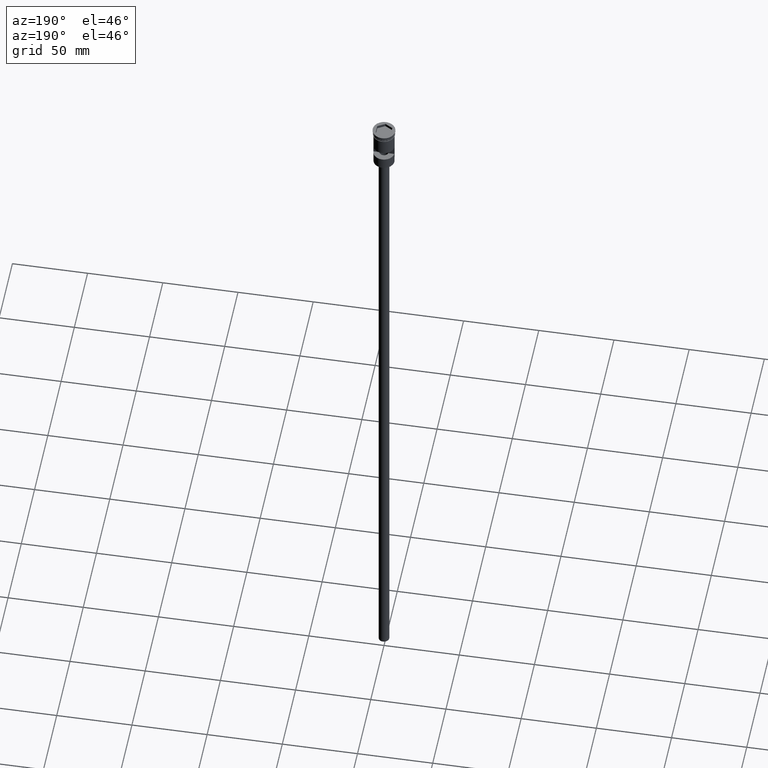
[diagram: clean part render]
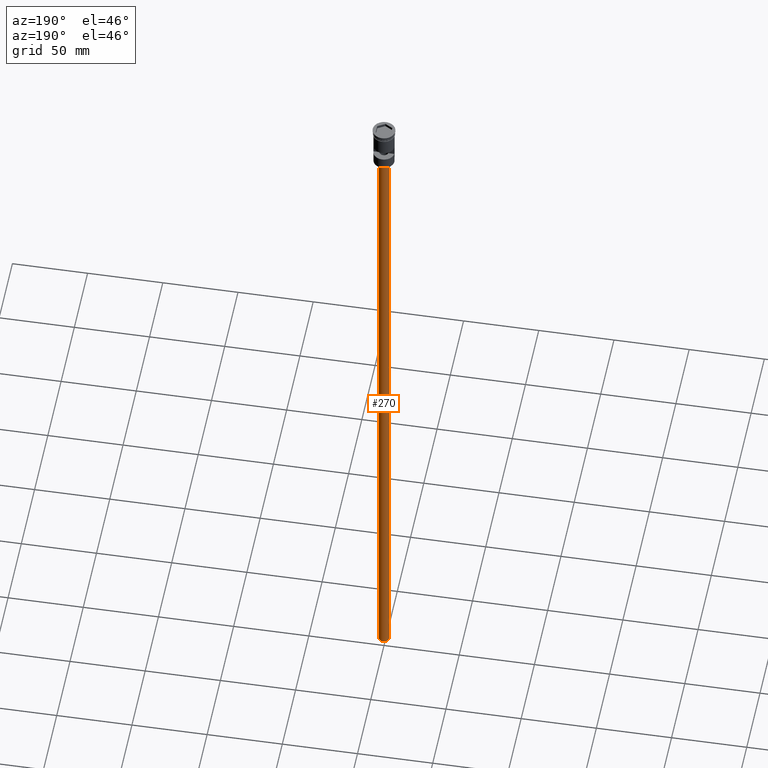
[diagram: same view with one face highlighted and labeled with its STEP entity id]
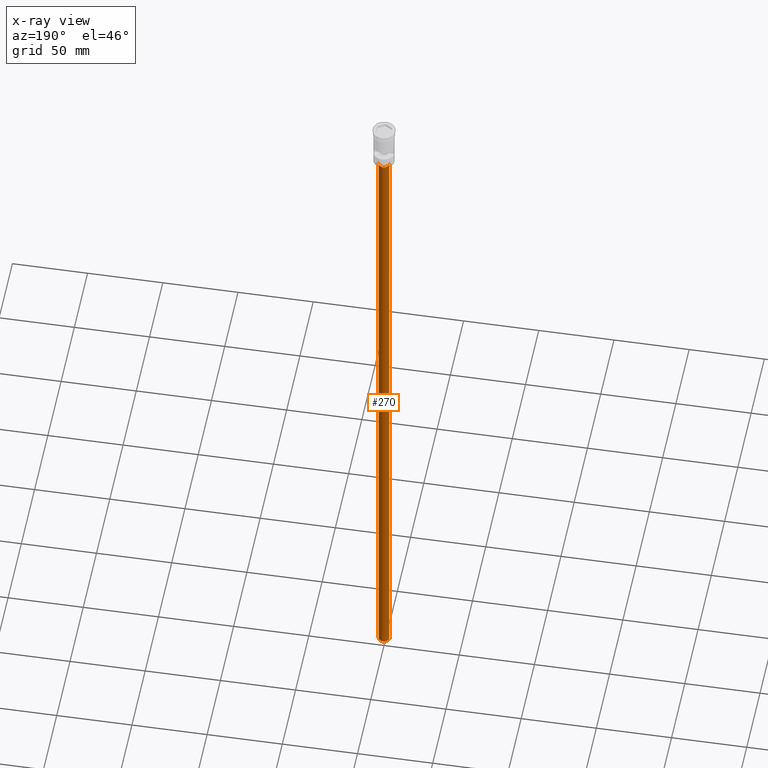
[diagram: x-ray of the same camera — body ghosted, the highlighted face saturated]
A machine part, auxiliary view. The second image highlights one B-rep face of the part: STEP entity #270.
The next image is the same camera in x-ray: the body ghosted, the highlighted face saturated — about 0% of this face is hidden behind the body in this view.
In plain terms, the highlighted cylindrical surface (edge-blend (fillet) strip) has radius 3.5 mm, axis along (-0, -0, 1).
Its self-contained STEP definition (entity closure, byte-faithful):
#6 = EDGE_LOOP ( 'NONE', ( #1063, #1061, #845, #296 ) ) ;
#7 = LINE ( 'NONE', #1358, #1218 ) ;
#21 = CARTESIAN_POINT ( 'NONE',  ( -3.500000000000000444, 4.286263797015737088E-16, -31.50000000000000000 ) ) ;
#57 = VERTEX_POINT ( 'NONE', #755 ) ;
#59 = EDGE_CURVE ( 'NONE', #798, #1407, #7, .T. ) ;
#80 = CARTESIAN_POINT ( 'NONE',  ( 0.000000000000000000, 0.000000000000000000, -478.5000000000000568 ) ) ;
#188 = DIRECTION ( 'NONE',  ( -1.000000000000000000, 0.000000000000000000, 0.000000000000000000 ) ) ;
#195 = EDGE_CURVE ( 'NONE', #57, #798, #227, .T. ) ;
#227 = CIRCLE ( 'NONE', #247, 3.500000000000000444 ) ;
#247 = AXIS2_PLACEMENT_3D ( 'NONE', #80, #1291, #188 ) ;
#256 = VECTOR ( 'NONE', #268, 1000.000000000000000 ) ;
#268 = DIRECTION ( 'NONE',  ( -0.000000000000000000, -0.000000000000000000, 1.000000000000000000 ) ) ;
#270 = ADVANCED_FACE ( 'NONE', ( #697 ), #1220, .T. ) ;
#296 = ORIENTED_EDGE ( 'NONE', *, *, #59, .F. ) ;
#316 = CARTESIAN_POINT ( 'NONE',  ( 3.500000000000000444, 0.000000000000000000, -31.50000000000000000 ) ) ;
#415 = VERTEX_POINT ( 'NONE', #21 ) ;
#482 = DIRECTION ( 'NONE',  ( -0.000000000000000000, -0.000000000000000000, 1.000000000000000000 ) ) ;
#483 = CIRCLE ( 'NONE', #886, 3.500000000000000444 ) ;
#576 = DIRECTION ( 'NONE',  ( 0.000000000000000000, 0.000000000000000000, -1.000000000000000000 ) ) ;
#602 = DIRECTION ( 'NONE',  ( 1.000000000000000000, 0.000000000000000000, 0.000000000000000000 ) ) ;
#694 = DIRECTION ( 'NONE',  ( -1.000000000000000000, 0.000000000000000000, 0.000000000000000000 ) ) ;
#697 = FACE_OUTER_BOUND ( 'NONE', #6, .T. ) ;
#755 = CARTESIAN_POINT ( 'NONE',  ( -3.500000000000000444, 4.286263797015737088E-16, -478.5000000000000568 ) ) ;
#798 = VERTEX_POINT ( 'NONE', #947 ) ;
#845 = ORIENTED_EDGE ( 'NONE', *, *, #986, .T. ) ;
#886 = AXIS2_PLACEMENT_3D ( 'NONE', #1296, #576, #694 ) ;
#947 = CARTESIAN_POINT ( 'NONE',  ( 3.500000000000000444, 0.000000000000000000, -478.5000000000000568 ) ) ;
#986 = EDGE_CURVE ( 'NONE', #415, #1407, #483, .T. ) ;
#1001 = DIRECTION ( 'NONE',  ( -0.000000000000000000, -0.000000000000000000, 1.000000000000000000 ) ) ;
#1061 = ORIENTED_EDGE ( 'NONE', *, *, #1222, .T. ) ;
#1063 = ORIENTED_EDGE ( 'NONE', *, *, #195, .F. ) ;
#1141 = AXIS2_PLACEMENT_3D ( 'NONE', #1337, #482, #602 ) ;
#1218 = VECTOR ( 'NONE', #1001, 1000.000000000000000 ) ;
#1220 = CYLINDRICAL_SURFACE ( 'NONE', #1141, 3.500000000000000444 ) ;
#1222 = EDGE_CURVE ( 'NONE', #57, #415, #1589, .T. ) ;
#1291 = DIRECTION ( 'NONE',  ( 0.000000000000000000, 0.000000000000000000, -1.000000000000000000 ) ) ;
#1296 = CARTESIAN_POINT ( 'NONE',  ( 0.000000000000000000, 0.000000000000000000, -31.50000000000000000 ) ) ;
#1337 = CARTESIAN_POINT ( 'NONE',  ( 0.000000000000000000, 0.000000000000000000, -478.5000000000000568 ) ) ;
#1339 = CARTESIAN_POINT ( 'NONE',  ( -3.500000000000000444, 4.286263797015737088E-16, -478.5000000000000568 ) ) ;
#1358 = CARTESIAN_POINT ( 'NONE',  ( 3.500000000000000444, 0.000000000000000000, -478.5000000000000568 ) ) ;
#1407 = VERTEX_POINT ( 'NONE', #316 ) ;
#1589 = LINE ( 'NONE', #1339, #256 ) ;